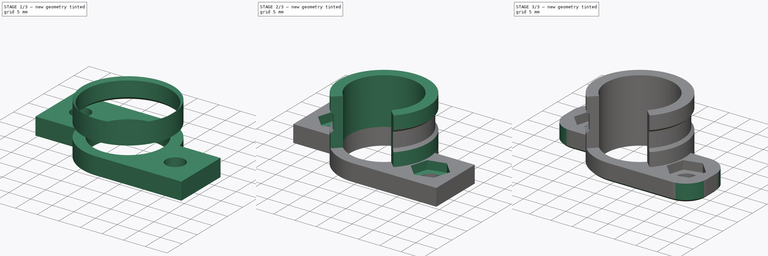
[diagram: build sequence overview — one tinted view per stage of 3, left to right]
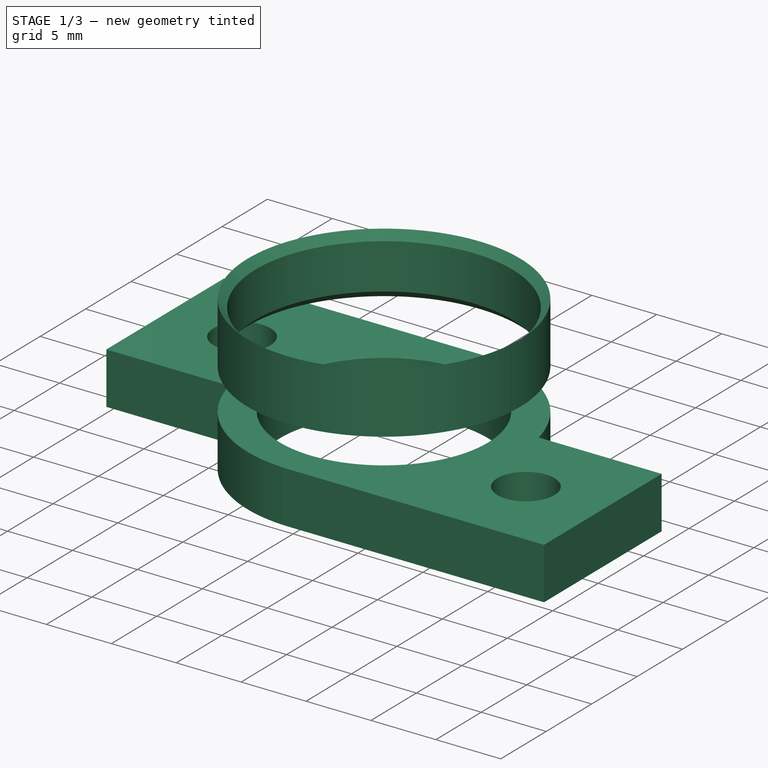
[diagram: stage 1 of 3 — iso view after this stage's code; geometry added in this stage tinted green]
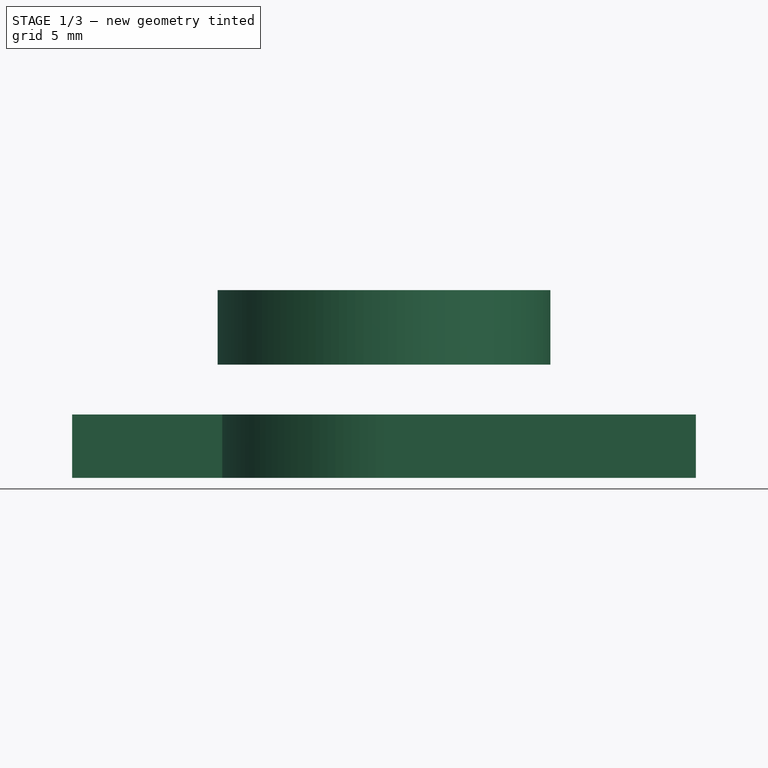
[diagram: stage 1 of 3 — front view after this stage's code; geometry added in this stage tinted green]
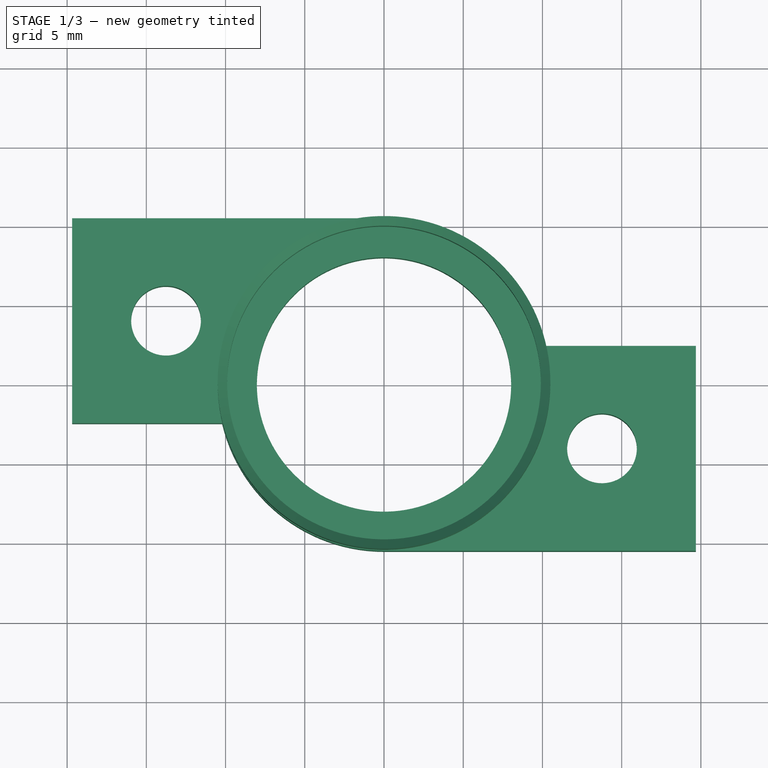
[diagram: stage 1 of 3 — top view after this stage's code; geometry added in this stage tinted green]
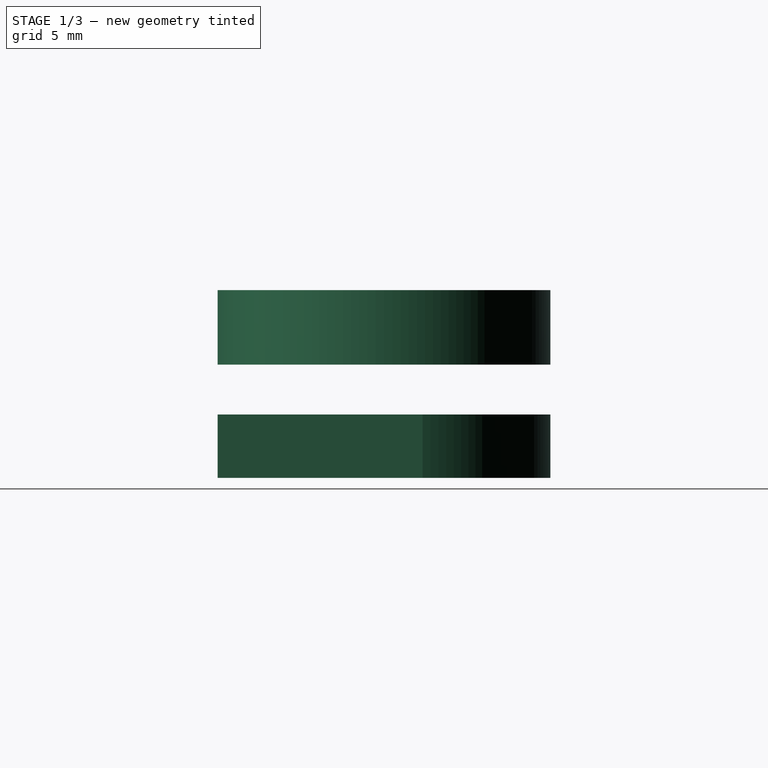
[diagram: stage 1 of 3 — right view after this stage's code; geometry added in this stage tinted green]
FCSTD DOCUMENT  (FreeCAD 0.15R4671 (Git))
Label: Halter Gleitlager Z
License: All rights reserved
LicenseURL: http://de.wikipedia.org/wiki/Alle_Rechte_vorbehalten
objects: Sketcher::SketchObject×4, PartDesign::Pad×2, PartDesign::Revolution×1, Part::Cut×1, PartDesign::Pocket×1, PartDesign::Fillet×1, PartDesign::Chamfer×1
note: 15 computed .brp shape members not serialized (recipe doc carries the construction recipe); baked Part::Feature solids carry a one-line shape summary decoded from their .brp

FEATURE [Sketcher::SketchObject] Sketch
  sketch-geometry (21):
    g0: Circle CenterX=0 CenterY=0 CenterZ=0 NormalX=0 NormalY=0 NormalZ=1 Radius=8.025
    g1: ArcOfCircle CenterX=0 CenterY=0 CenterZ=0 NormalX=0 NormalY=0 NormalZ=1 Radius=10.5 StartAngle=3.37618 EndAngle=4.71239
    g2: ArcOfCircle CenterX=0 CenterY=0 CenterZ=0 NormalX=0 NormalY=0 NormalZ=1 Radius=10.5 StartAngle=0.234587 EndAngle=1.5708
    g3: LineSegment StartX=-19.6824 StartY=10.5 StartZ=0 EndX=-6.3451e-08 EndY=10.5 EndZ=0
    g4: LineSegment StartX=-10.2124 StartY=-2.44064 StartZ=0 EndX=-19.6824 EndY=-2.44064 EndZ=0
    g5: LineSegment StartX=-19.6824 StartY=-2.44064 StartZ=0 EndX=-19.6824 EndY=10.5 EndZ=0
    g6: LineSegment StartX=19.6824 StartY=2.44064 StartZ=0 EndX=10.2124 EndY=2.44064 EndZ=0
    g7: LineSegment StartX=6.3451e-08 StartY=-10.5 StartZ=0 EndX=19.6824 EndY=-10.5 EndZ=0
    g8: LineSegment StartX=19.6824 StartY=-10.5 StartZ=0 EndX=19.6824 EndY=2.44064 EndZ=0
    g9: LineSegment [constr] StartX=17.2824 StartY=-1.99452 StartZ=0 EndX=13.7574 EndY=0.0406388 EndZ=0
    g10: LineSegment [constr] StartX=13.7574 StartY=0.0406388 StartZ=0 EndX=10.2324 EndY=-1.99452 EndZ=0
    g11: LineSegment [constr] StartX=10.2324 StartY=-1.99452 StartZ=0 EndX=10.2324 EndY=-6.06484 EndZ=0
    g12: LineSegment [constr] StartX=10.2324 StartY=-6.06484 StartZ=0 EndX=13.7574 EndY=-8.1 EndZ=0
    g13: LineSegment [constr] StartX=13.7574 StartY=-8.1 StartZ=0 EndX=17.2824 EndY=-6.06484 EndZ=0
    g14: LineSegment [constr] StartX=17.2824 StartY=-6.06484 StartZ=0 EndX=17.2824 EndY=-1.99452 EndZ=0
    g15: Circle [constr] CenterX=13.7574 CenterY=-4.02968 CenterZ=0 NormalX=0 NormalY=0 NormalZ=1 Radius=4.07032
    g16: Circle CenterX=13.7574 CenterY=-4.02968 CenterZ=0 NormalX=0 NormalY=0 NormalZ=1 Radius=2.2
    g17: Circle CenterX=-13.7574 CenterY=4.02968 CenterZ=0 NormalX=0 NormalY=0 NormalZ=1 Radius=2.2
    g18: LineSegment [constr] StartX=-13.7574 StartY=4.02968 StartZ=0 EndX=0 EndY=0 EndZ=0
    g19: LineSegment [constr] StartX=0 StartY=0 StartZ=0 EndX=13.7574 EndY=-4.02968 EndZ=0
    g20: LineSegment [constr] StartX=10.2324 StartY=-1.99452 StartZ=0 EndX=7.87676 EndY=-1.53535 EndZ=0
  constraints (55):
    c: Coincident(g0,g-1)
    c: Radius(g0) = 8.025
    c: Coincident(g1,g-1)
    c: Coincident(g2,g-1)
    c: Equal(g1,g2)
    c: Coincident(g4,g5)
    c: Coincident(g5,g3)
    c: Horizontal(g3)
    c: Horizontal(g4)
    c: Vertical(g5)
    c: Coincident(g7,g8)
    c: Coincident(g8,g6)
    c: Horizontal(g6)
    c: Horizontal(g7)
    c: Vertical(g8)
    c: Coincident(g1,g4)
    c: Coincident(g2,g6)
    c: Coincident(g2,g3)
    c: Coincident(g1,g7)
    c: Equal(g5,g8)
    c: Equal(g4,g6)
    c: Equal(g3,g7)
    c: Coincident(g9,g10)
    c: Coincident(g10,g11)
    c: Coincident(g11,g12)
    c: Coincident(g12,g13)
    c: Coincident(g13,g14)
    c: Coincident(g14,g9)
    c: Equal(g9, g10-g14) x5
    c: PointOnObject(g9,g15)
    c: PointOnObject(g10,g15)
    c: PointOnObject(g11,g15)
    c: PointOnObject(g12,g15)
    c: PointOnObject(g13,g15)
    c: PointOnObject(g14,g15)
    c: Distance(g13,g9) = 7.05
    c: DistanceX(g9,g6) = 2.4
    c: DistanceY(g6,g9) = -2.4
    c: Radius(g2) = 10.5
    c: Tangent(g1,g7)
    c: Coincident(g16,g15)
    c: Equal(g17,g16)
    c: Coincident(g18,g17)
    c: Coincident(g18,g-1)
    c: Coincident(g18,g19)
    c: Coincident(g19,g15)
    c: Equal(g19,g18)
    c: Parallel(g18,g19)
    c: Radius(g17) = 2.2
    c: Vertical(g14)
    c: DistanceY(g12,g7) = -2.4
    c: Coincident(g20,g10)
    c: PointOnObject(g20,g0)
    c: Perpendicular(g0,g20)
    c: Distance(g20) = 2.4
FEATURE [PartDesign::Pad] Pad
  Length = 4
  Length2 = 100
  Sketch = -> Sketch
  Type = 0
FEATURE [Sketcher::SketchObject] Sketch002
  Placement = pos=(0,0,0) rot=(-1,0,0;4.71239rad)
  sketch-geometry (5):
    g0: LineSegment [constr] StartX=-20 StartY=9.5 StartZ=0 EndX=20 EndY=9.5 EndZ=0
    g1: LineSegment StartX=9.9 StartY=11.25 StartZ=0 EndX=10.5 EndY=11.85 EndZ=0
    g2: LineSegment StartX=10.5 StartY=11.85 StartZ=0 EndX=10.5 EndY=7.15 EndZ=0
    g3: LineSegment StartX=10.5 StartY=7.15 StartZ=0 EndX=9.9 EndY=7.75 EndZ=0
    g4: LineSegment StartX=9.9 StartY=7.75 StartZ=0 EndX=9.9 EndY=11.25 EndZ=0
  constraints (15):
    c: Symmetric(g0,g0,g-2)
    c: DistanceY(g-1,g0) = 9.5
    c: DistanceX(g0) = 40
    c: Coincident(g1,g2)
    c: Coincident(g2,g3)
    c: Coincident(g3,g4)
    c: Coincident(g4,g1)
    c: Vertical(g2)
    c: Vertical(g4)
    c: Symmetric(g2,g1,g0)
    c: DistanceX(g3) = -0.6
    c: DistanceX(g-1,g2) = 10.5
    c: DistanceY(g4) = 3.5
    c: Angle(g2,g3) = 0.785398
    c: Equal(g1,g3)
FEATURE [PartDesign::Revolution] Revolution
  Angle = 360
  Axis = (0,0,1)
  Base = (0,0,0)
  Placement = pos=(0,0,0) rot=(-1,0,0;4.71239rad)
  ReferenceAxis = -> Sketch002 [V_Axis]
  Reversed = true
  Sketch = -> Sketch002
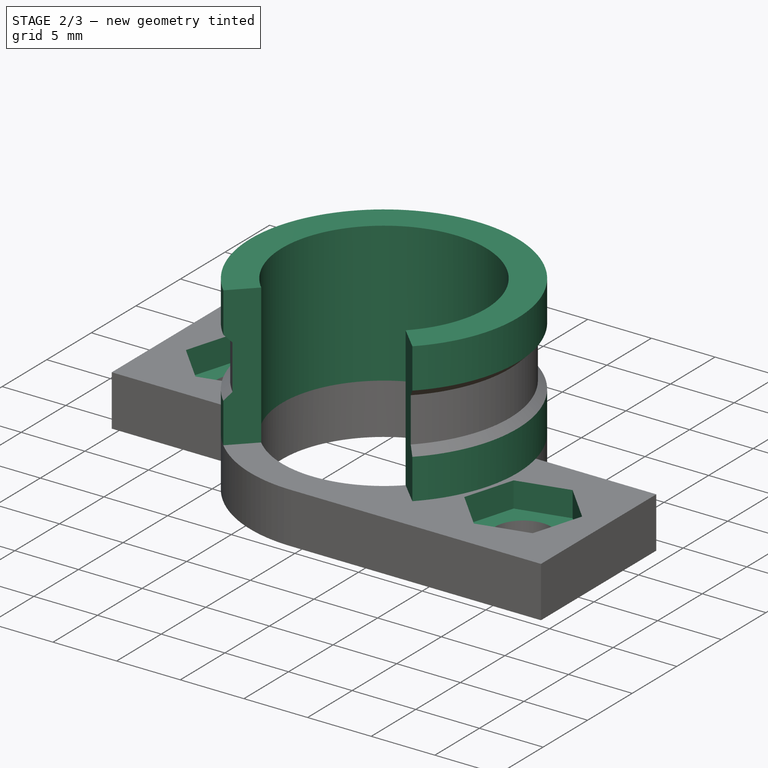
[diagram: stage 2 of 3 — iso view after this stage's code; geometry added in this stage tinted green]
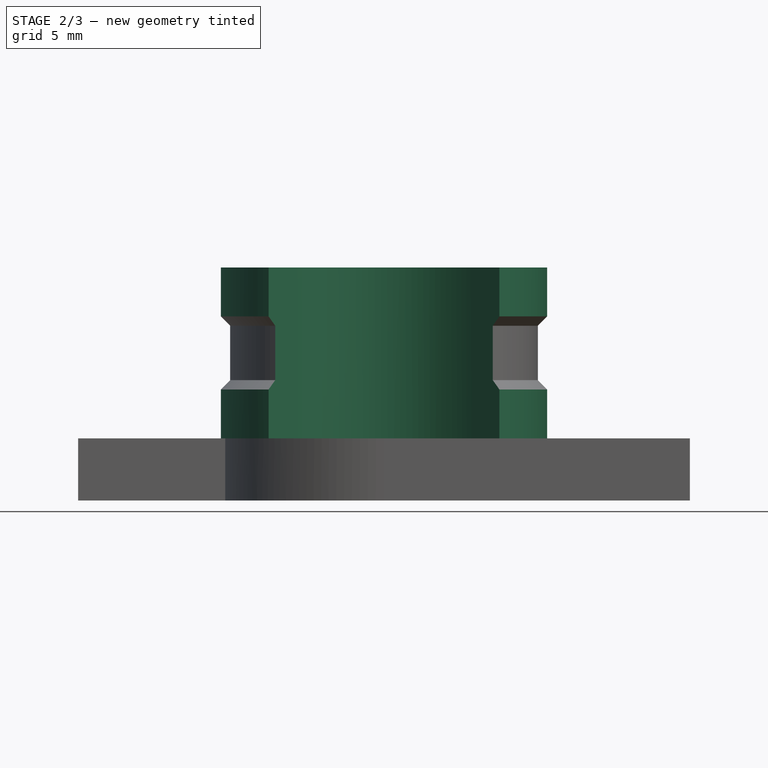
[diagram: stage 2 of 3 — front view after this stage's code; geometry added in this stage tinted green]
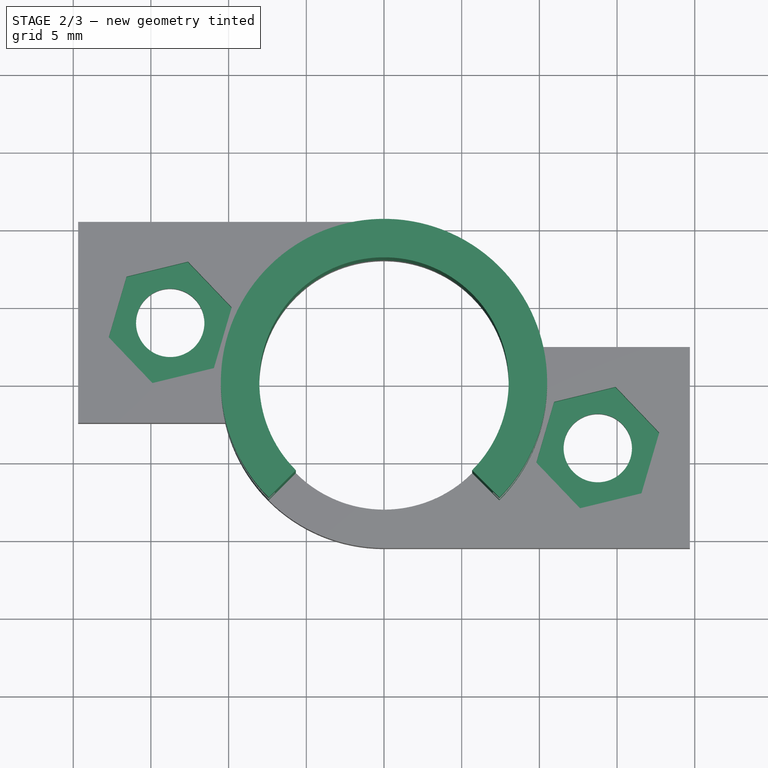
[diagram: stage 2 of 3 — top view after this stage's code; geometry added in this stage tinted green]
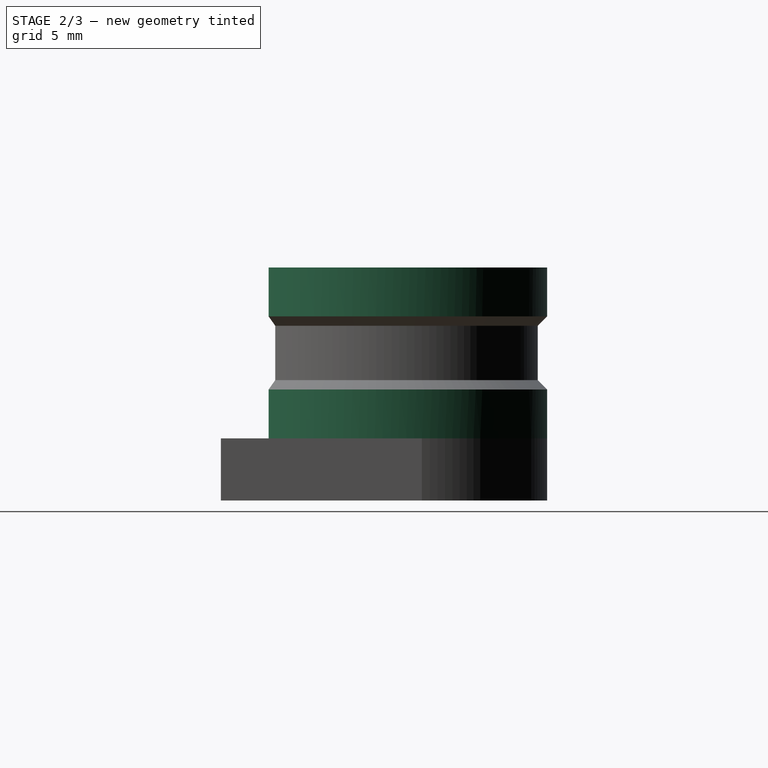
[diagram: stage 2 of 3 — right view after this stage's code; geometry added in this stage tinted green]
FEATURE [Sketcher::SketchObject] Sketch001
  ExternalGeometry = -> [Pad]
  Placement = pos=(0,0,4) rot=(0,0,1;0rad)
  Support = -> Pad [Face13]
  sketch-geometry (4):
    g0: ArcOfCircle CenterX=0 CenterY=0 CenterZ=0 NormalX=0 NormalY=0 NormalZ=1 Radius=10.5 StartAngle=5.49779 EndAngle=10.2102
    g1: ArcOfCircle CenterX=0 CenterY=0 CenterZ=0 NormalX=0 NormalY=0 NormalZ=1 Radius=8.025 StartAngle=5.49779 EndAngle=10.2102
    g2: LineSegment StartX=-5.67453 StartY=-5.67453 StartZ=0 EndX=-7.42462 EndY=-7.42462 EndZ=0
    g3: LineSegment StartX=5.67453 StartY=-5.67453 StartZ=0 EndX=7.42462 EndY=-7.42462 EndZ=0
  constraints (12):
    c: Coincident(g0,g-1)
    c: Coincident(g1,g-1)
    c: PointOnObject(g1,g-4)
    c: Coincident(g2,g1)
    c: Coincident(g2,g0)
    c: Coincident(g3,g1)
    c: Coincident(g3,g0)
    c: Perpendicular(g-4,g3)
    c: Perpendicular(g-4,g2)
    c: PointOnObject(g-3,g0)
    c: Angle(g-1,g3) = -3.92699
    c: Angle(g2,g-1) = 2.35619
FEATURE [PartDesign::Pad] Pad001
  Length = 11
  Length2 = 100
  Sketch = -> Sketch001
  Type = 0
FEATURE [Part::Cut] Cut
  Base = -> Pad001
  Tool = -> Revolution
FEATURE [Sketcher::SketchObject] Sketch003
  ExternalGeometry = -> [Cut]
  Placement = pos=(0,0,4) rot=(0,0,1;0rad)
  Support = -> Cut [Face8]
  sketch-geometry (15):
    g0: LineSegment StartX=-12.6133 StartY=7.93588 StartZ=0 EndX=-16.5682 EndY=6.97365 EndZ=0
    g1: LineSegment StartX=-16.5682 StartY=6.97365 StartZ=0 EndX=-17.7124 EndY=3.06746 EndZ=0
    g2: LineSegment StartX=-17.7124 StartY=3.06746 StartZ=0 EndX=-14.9016 EndY=0.123482 EndZ=0
    g3: LineSegment StartX=-14.9016 StartY=0.123482 StartZ=0 EndX=-10.9466 EndY=1.08571 EndZ=0
    g4: LineSegment StartX=-10.9466 StartY=1.08571 StartZ=0 EndX=-9.80248 EndY=4.99191 EndZ=0
    g5: LineSegment StartX=-9.80248 StartY=4.99191 StartZ=0 EndX=-12.6133 EndY=7.93588 EndZ=0
    g6: Circle [constr] CenterX=-13.7574 CenterY=4.02968 CenterZ=0 NormalX=0 NormalY=0 NormalZ=1 Radius=4.07032
    g7: LineSegment StartX=14.9016 StartY=-0.123482 StartZ=0 EndX=10.9466 EndY=-1.08571 EndZ=0
    g8: LineSegment StartX=10.9466 StartY=-1.08571 StartZ=0 EndX=9.80248 EndY=-4.99191 EndZ=0
    g9: LineSegment StartX=9.80248 StartY=-4.99191 StartZ=0 EndX=12.6133 EndY=-7.93588 EndZ=0
    g10: LineSegment StartX=12.6133 StartY=-7.93588 StartZ=0 EndX=16.5682 EndY=-6.97365 EndZ=0
    g11: LineSegment StartX=16.5682 StartY=-6.97365 StartZ=0 EndX=17.7124 EndY=-3.06746 EndZ=0
    g12: LineSegment StartX=17.7124 StartY=-3.06746 StartZ=0 EndX=14.9016 EndY=-0.123482 EndZ=0
    g13: Circle [constr] CenterX=13.7574 CenterY=-4.02968 CenterZ=0 NormalX=0 NormalY=0 NormalZ=1 Radius=4.07032
    g14: LineSegment [constr] StartX=10.0766 StartY=-2.95154 StartZ=0 EndX=10.3746 EndY=-3.03881 EndZ=0
  constraints (36):
    c: Coincident(g0,g1)
    c: Coincident(g1,g2)
    c: Coincident(g2,g3)
    c: Coincident(g3,g4)
    c: Coincident(g4,g5)
    c: Coincident(g5,g0)
    c: Equal(g0, g1-g5) x5
    c: PointOnObject(g0,g6)
    c: PointOnObject(g1,g6)
    c: PointOnObject(g2,g6)
    c: PointOnObject(g3,g6)
    c: PointOnObject(g4,g6)
    c: PointOnObject(g5,g6)
    c: Coincident(g6,g-4)
    c: Coincident(g7,g8)
    c: Coincident(g8,g9)
    c: Coincident(g9,g10)
    c: Coincident(g10,g11)
    c: Coincident(g11,g12)
    c: Coincident(g12,g7)
    c: Equal(g7, g8-g12) x5
    c: PointOnObject(g7,g13)
    c: PointOnObject(g8,g13)
    c: PointOnObject(g9,g13)
    c: PointOnObject(g10,g13)
    c: PointOnObject(g11,g13)
    c: PointOnObject(g12,g13)
    c: Coincident(g13,g-3)
    c: Equal(g6,g13)
    c: Distance(g8,g10) = 7.05
    c: Parallel(g4,g8)
    c: PointOnObject(g14,g-5)
    c: PointOnObject(g14,g8)
    c: Perpendicular(g-5,g14)
    c: Perpendicular(g8,g14)
    c: Symmetric(g7,g8,g14)
FEATURE [PartDesign::Pocket] Pocket
  Length = 2
  Sketch = -> Sketch003
  Type = 0
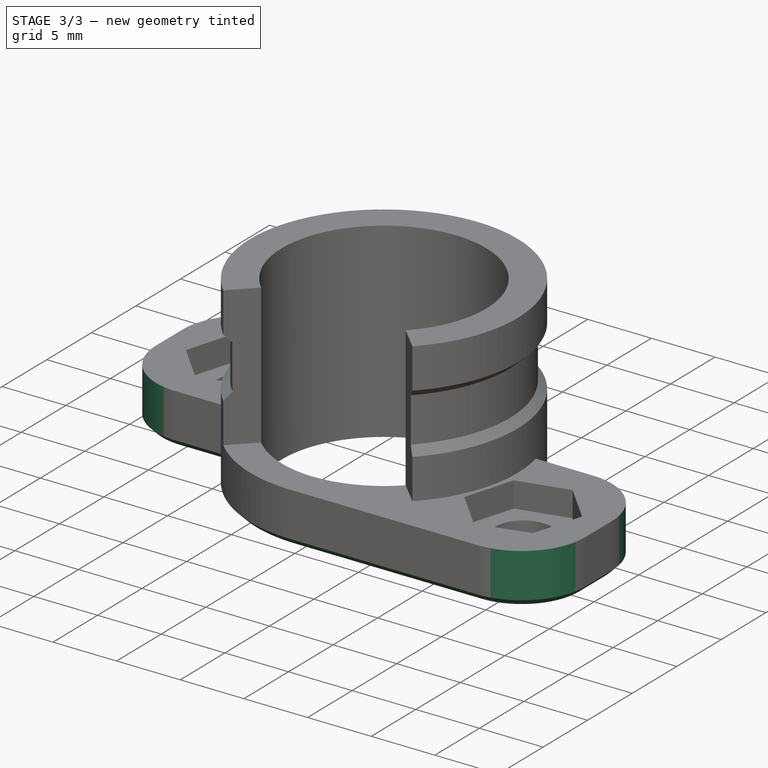
[diagram: stage 3 of 3 — iso view after this stage's code; geometry added in this stage tinted green]
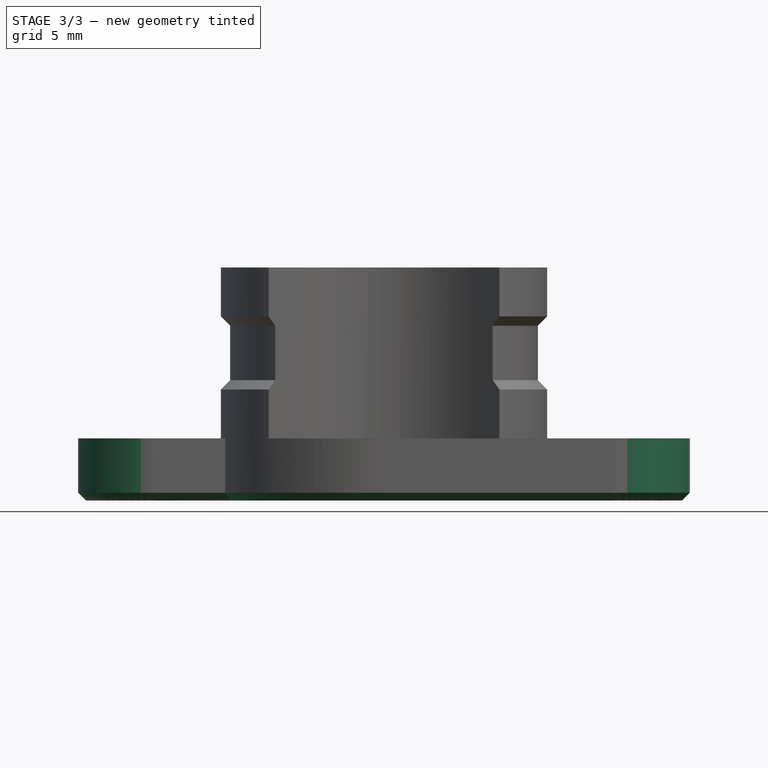
[diagram: stage 3 of 3 — front view after this stage's code; geometry added in this stage tinted green]
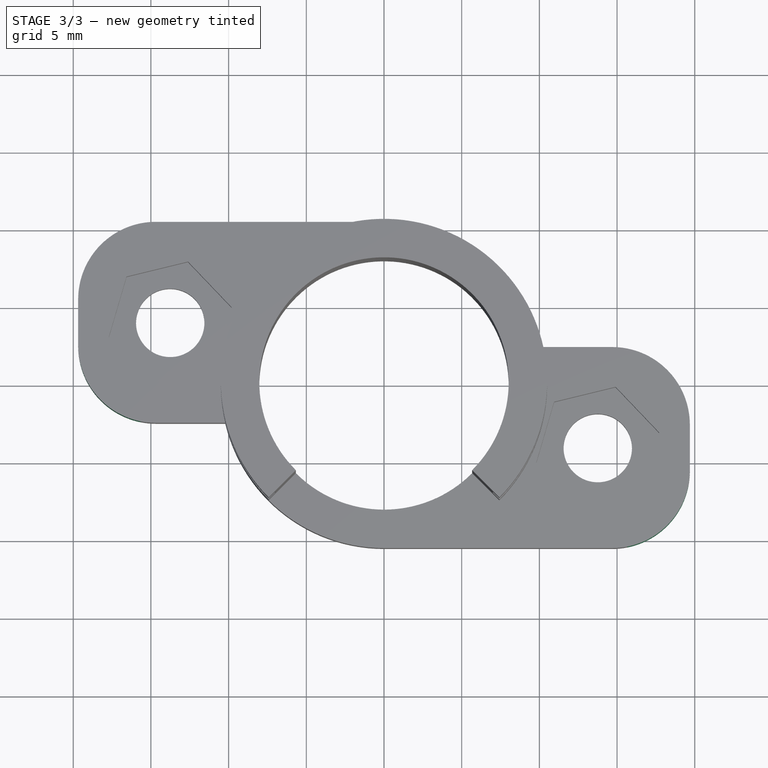
[diagram: stage 3 of 3 — top view after this stage's code; geometry added in this stage tinted green]
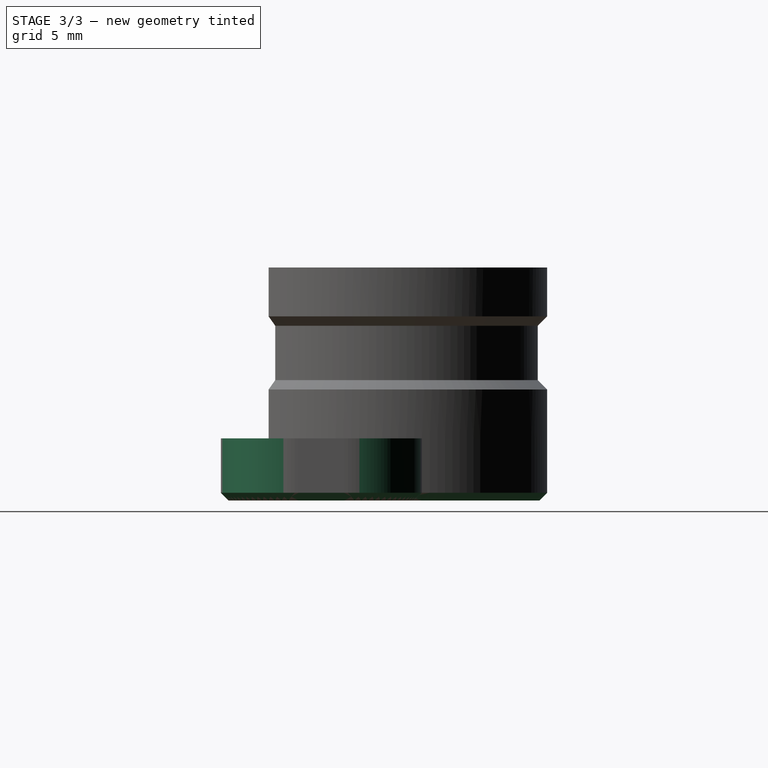
[diagram: stage 3 of 3 — right view after this stage's code; geometry added in this stage tinted green]
FEATURE [PartDesign::Fillet] Fillet
  Base = -> Pocket [Edge2,Edge9,Edge34,Edge48]
  Radius = 5
FEATURE [PartDesign::Chamfer] Chamfer
  Base = -> Fillet [Edge8,Edge11]
  Size = 0.5
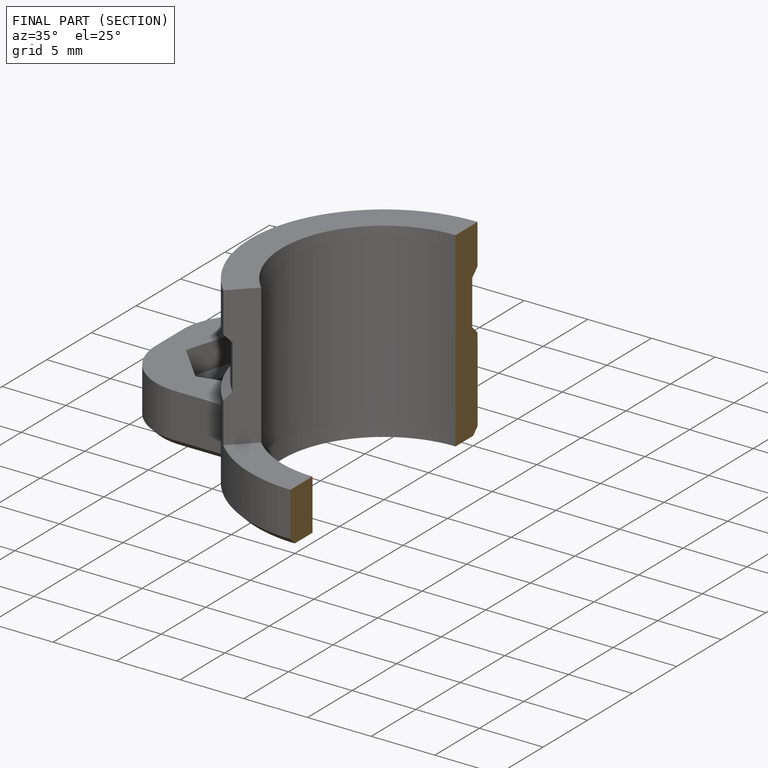
[diagram: finished part — half-section view (interior)]
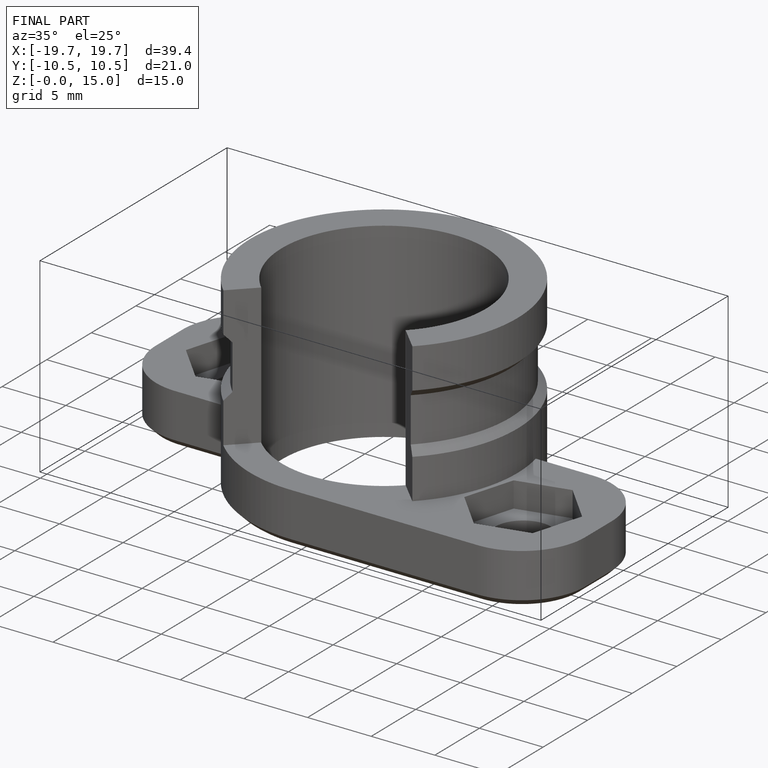
[diagram: finished part — iso view with bounding-box wireframe]
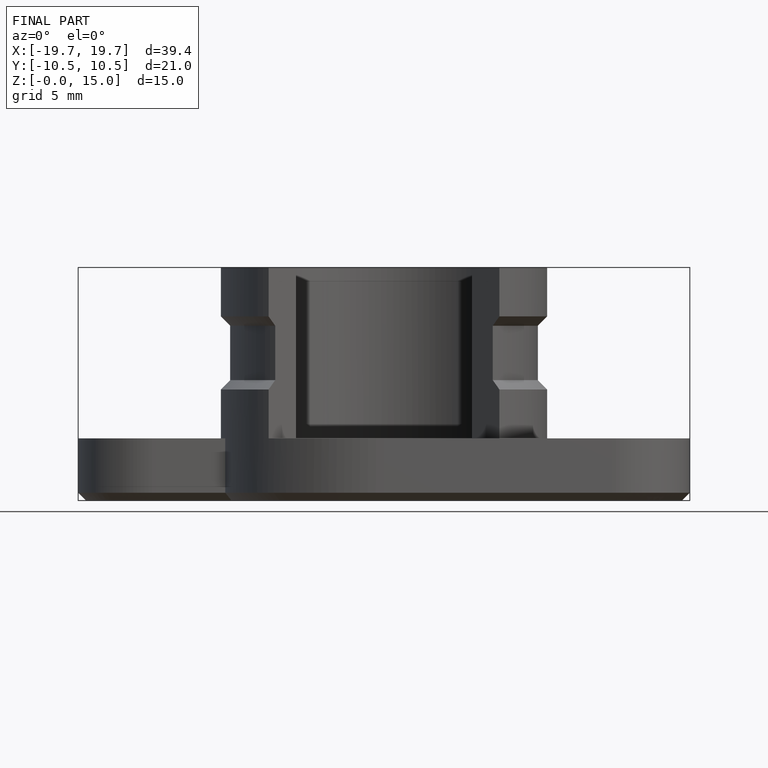
[diagram: finished part — front view with bounding-box wireframe]
